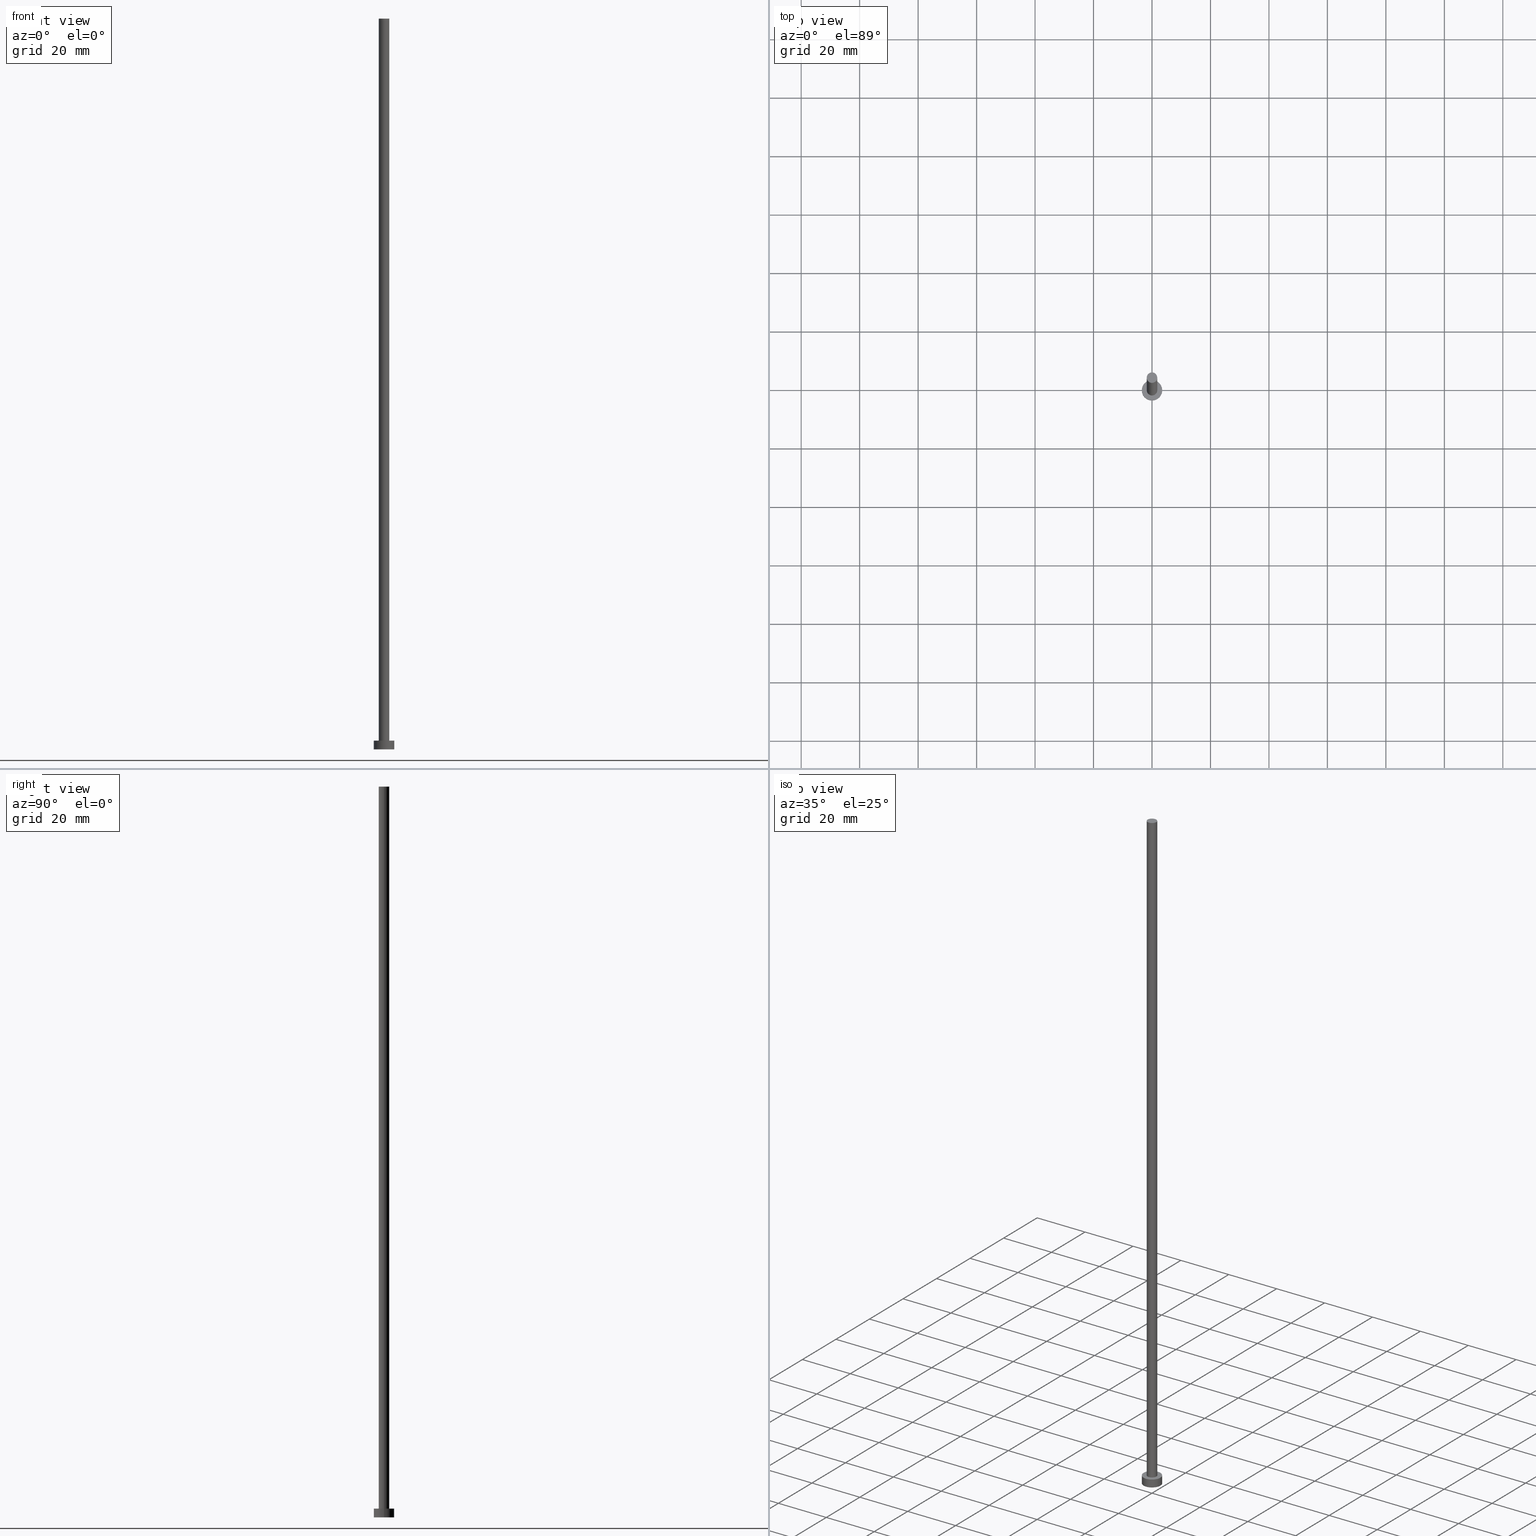
[diagram: canonical four-view strip — front | top / right | iso, engineering-drawing reading convention]
A machine part, canonical four-view strip (front | top / right | iso — engineering-drawing reading convention). The complete STEP part file that produces these views, byte-faithful:
ISO-10303-21;
HEADER;
FILE_DESCRIPTION (( 'STEP AP203' ),
    '1' );
FILE_NAME ('6d70.STEP',
    '2023-05-24T12:28:08',
    ( '' ),
    ( '' ),
    'SwSTEP 2.0',
    'SolidWorks 2019',
    '' );
FILE_SCHEMA (( 'CONFIG_CONTROL_DESIGN' ));
ENDSEC;

DATA;
#1 = ORIENTED_EDGE ( 'NONE', *, *, #40, .T. ) ;
#2 = ADVANCED_FACE ( 'NONE', ( #107 ), #166, .F. ) ;
#3 = CARTESIAN_POINT ( 'NONE',  ( -1.800000000000000044, 0.000000000000000000, 3.000000000000000000 ) ) ;
#4 = CALENDAR_DATE ( 2023, 24, 5 ) ;
#5 = ORIENTED_EDGE ( 'NONE', *, *, #192, .F. ) ;
#6 = ORIENTED_EDGE ( 'NONE', *, *, #155, .F. ) ;
#7 = VERTEX_POINT ( 'NONE', #242 ) ;
#8 = DIRECTION ( 'NONE',  ( 0.000000000000000000, 0.000000000000000000, 1.000000000000000000 ) ) ;
#9 = CARTESIAN_POINT ( 'NONE',  ( 0.000000000000000000, 0.000000000000000000, 3.000000000000000000 ) ) ;
#10 = EDGE_CURVE ( 'NONE', #236, #7, #68, .T. ) ;
#11 = LINE ( 'NONE', #94, #198 ) ;
#12 = DIRECTION ( 'NONE',  ( 1.000000000000000000, 0.000000000000000000, 0.000000000000000000 ) ) ;
#13 = DIRECTION ( 'NONE',  ( 1.000000000000000000, 0.000000000000000000, -0.000000000000000000 ) ) ;
#14 = ADVANCED_FACE ( 'NONE', ( #149 ), #221, .T. ) ;
#15 = DIRECTION ( 'NONE',  ( 1.000000000000000000, 0.000000000000000000, 0.000000000000000000 ) ) ;
#16 = CIRCLE ( 'NONE', #79, 3.500000000000000444 ) ;
#17 = AXIS2_PLACEMENT_3D ( 'NONE', #170, #248, #182 ) ;
#18 = PERSON_AND_ORGANIZATION ( #205, #50 ) ;
#19 = ORIENTED_EDGE ( 'NONE', *, *, #30, .F. ) ;
#20 = CYLINDRICAL_SURFACE ( 'NONE', #204, 1.800000000000000044 ) ;
#21 = CARTESIAN_POINT ( 'NONE',  ( 0.000000000000000000, 0.000000000000000000, 3.000000000000000000 ) ) ;
#22 = DATE_TIME_ROLE ( 'classification_date' ) ;
#23 = ORIENTED_EDGE ( 'NONE', *, *, #150, .T. ) ;
#24 = DIRECTION ( 'NONE',  ( 1.000000000000000000, 0.000000000000000000, 0.000000000000000000 ) ) ;
#25 = CC_DESIGN_PERSON_AND_ORGANIZATION_ASSIGNMENT ( #62, #144, ( #104 ) ) ;
#26 = CARTESIAN_POINT ( 'NONE',  ( -1.800000000000000044, 0.000000000000000000, 250.0000000000000000 ) ) ;
#27 =( LENGTH_UNIT ( ) NAMED_UNIT ( * ) SI_UNIT ( .MILLI., .METRE. ) );
#28 = CIRCLE ( 'NONE', #208, 1.800000000000000044 ) ;
#29 = FACE_OUTER_BOUND ( 'NONE', #59, .T. ) ;
#30 = EDGE_CURVE ( 'NONE', #215, #195, #16, .T. ) ;
#31 = PRODUCT_DEFINITION_SHAPE ( 'NONE', 'NONE',  #173 ) ;
#32 = CARTESIAN_POINT ( 'NONE',  ( 3.500000000000000444, 4.286263797015737088E-16, 0.000000000000000000 ) ) ;
#33 = APPROVAL_DATE_TIME ( #191, #115 ) ;
#34 = EDGE_LOOP ( 'NONE', ( #5, #243 ) ) ;
#35 =( GEOMETRIC_REPRESENTATION_CONTEXT ( 3 ) GLOBAL_UNCERTAINTY_ASSIGNED_CONTEXT ( ( #82 ) ) GLOBAL_UNIT_ASSIGNED_CONTEXT ( ( #27, #223, #113 ) ) REPRESENTATION_CONTEXT ( 'NONE', 'WORKASPACE' ) );
#36 = VECTOR ( 'NONE', #185, 1000.000000000000000 ) ;
#37 = APPROVAL_ROLE ( '' ) ;
#38 = CALENDAR_DATE ( 2023, 24, 5 ) ;
#39 = PERSON_AND_ORGANIZATION_ROLE ( 'design_owner' ) ;
#40 = EDGE_CURVE ( 'NONE', #222, #130, #28, .T. ) ;
#41 = CIRCLE ( 'NONE', #224, 3.500000000000000444 ) ;
#42 = APPROVAL_STATUS ( 'not_yet_approved' ) ;
#43 = DIRECTION ( 'NONE',  ( 1.000000000000000000, 0.000000000000000000, 0.000000000000000000 ) ) ;
#44 = SHAPE_DEFINITION_REPRESENTATION ( #31, #57 ) ;
#45 = DIRECTION ( 'NONE',  ( 0.000000000000000000, 0.000000000000000000, 1.000000000000000000 ) ) ;
#46 = DIRECTION ( 'NONE',  ( 0.000000000000000000, 0.000000000000000000, 1.000000000000000000 ) ) ;
#47 = EDGE_LOOP ( 'NONE', ( #201, #23, #177, #139 ) ) ;
#48 = ORIENTED_EDGE ( 'NONE', *, *, #10, .T. ) ;
#49 = AXIS2_PLACEMENT_3D ( 'NONE', #157, #137, #228 ) ;
#50 = ORGANIZATION ( 'NEUR�EN�', 'NEUR�EN�', '' ) ;
#51 = DIRECTION ( 'NONE',  ( -0.000000000000000000, -0.000000000000000000, -1.000000000000000000 ) ) ;
#52 = DIRECTION ( 'NONE',  ( 0.000000000000000000, 0.000000000000000000, 1.000000000000000000 ) ) ;
#53 = CLOSED_SHELL ( 'NONE', ( #196, #202, #244, #216, #2, #123, #14 ) ) ;
#54 = CC_DESIGN_APPROVAL ( #111, ( #173 ) ) ;
#55 = PRODUCT ( '6d70', '6d70', '', ( #233 ) ) ;
#56 = LINE ( 'NONE', #211, #245 ) ;
#57 = ADVANCED_BREP_SHAPE_REPRESENTATION ( '6d70', ( #217, #176 ), #35 ) ;
#58 = PERSON_AND_ORGANIZATION ( #205, #50 ) ;
#59 = EDGE_LOOP ( 'NONE', ( #129, #232, #67, #70 ) ) ;
#60 = APPROVAL_PERSON_ORGANIZATION ( #58, #115, #77 ) ;
#61 = DATE_AND_TIME ( #172, #74 ) ;
#62 = PERSON_AND_ORGANIZATION ( #205, #50 ) ;
#63 = CARTESIAN_POINT ( 'NONE',  ( 1.800000000000000044, 2.204364238465235576E-16, 250.0000000000000000 ) ) ;
#64 = APPROVAL_DATE_TIME ( #147, #241 ) ;
#65 = CARTESIAN_POINT ( 'NONE',  ( 0.000000000000000000, 0.000000000000000000, 0.000000000000000000 ) ) ;
#66 = CC_DESIGN_PERSON_AND_ORGANIZATION_ASSIGNMENT ( #18, #174, ( #173 ) ) ;
#67 = ORIENTED_EDGE ( 'NONE', *, *, #155, .T. ) ;
#68 = CIRCLE ( 'NONE', #193, 3.500000000000000444 ) ;
#69 = VECTOR ( 'NONE', #51, 1000.000000000000000 ) ;
#70 = ORIENTED_EDGE ( 'NONE', *, *, #192, .T. ) ;
#71 = EDGE_CURVE ( 'NONE', #130, #222, #99, .T. ) ;
#72 = DIRECTION ( 'NONE',  ( 0.000000000000000000, 0.000000000000000000, 1.000000000000000000 ) ) ;
#73 = DIRECTION ( 'NONE',  ( -1.000000000000000000, 0.000000000000000000, 0.000000000000000000 ) ) ;
#74 = LOCAL_TIME ( 14, 28, 8.000000000000000000, #237 ) ;
#75 = DIRECTION ( 'NONE',  ( 1.000000000000000000, 0.000000000000000000, 0.000000000000000000 ) ) ;
#76 = DIRECTION ( 'NONE',  ( -0.000000000000000000, -0.000000000000000000, -1.000000000000000000 ) ) ;
#77 = APPROVAL_ROLE ( '' ) ;
#78 = PERSON_AND_ORGANIZATION_ROLE ( 'design_supplier' ) ;
#79 = AXIS2_PLACEMENT_3D ( 'NONE', #203, #45, #24 ) ;
#80 = APPROVAL_ROLE ( '' ) ;
#81 = FACE_OUTER_BOUND ( 'NONE', #85, .T. ) ;
#82 = UNCERTAINTY_MEASURE_WITH_UNIT (LENGTH_MEASURE( 1.000000000000000082E-05 ), #27, 'distance_accuracy_value', 'NONE');
#83 = EDGE_LOOP ( 'NONE', ( #152, #213 ) ) ;
#84 = CC_DESIGN_PERSON_AND_ORGANIZATION_ASSIGNMENT ( #141, #39, ( #55 ) ) ;
#85 = EDGE_LOOP ( 'NONE', ( #143, #199, #101, #218 ) ) ;
#86 = PERSON_AND_ORGANIZATION ( #205, #50 ) ;
#87 = ORIENTED_EDGE ( 'NONE', *, *, #249, .F. ) ;
#88 = CARTESIAN_POINT ( 'NONE',  ( 0.000000000000000000, 0.000000000000000000, 250.0000000000000000 ) ) ;
#89 = DESIGN_CONTEXT ( 'detailed design', #225, 'design' ) ;
#90 = LINE ( 'NONE', #186, #36 ) ;
#91 = FACE_OUTER_BOUND ( 'NONE', #47, .T. ) ;
#92 = LOCAL_TIME ( 14, 28, 8.000000000000000000, #116 ) ;
#93 = DIRECTION ( 'NONE',  ( -0.000000000000000000, -0.000000000000000000, -1.000000000000000000 ) ) ;
#94 = CARTESIAN_POINT ( 'NONE',  ( -1.800000000000000044, 0.000000000000000000, 250.0000000000000000 ) ) ;
#95 = CARTESIAN_POINT ( 'NONE',  ( -3.500000000000000444, 0.000000000000000000, 3.000000000000000000 ) ) ;
#96 = CC_DESIGN_DATE_AND_TIME_ASSIGNMENT ( #61, #253, ( #173 ) ) ;
#97 = PERSON_AND_ORGANIZATION ( #205, #50 ) ;
#98 = APPLICATION_PROTOCOL_DEFINITION ( 'international standard', 'config_control_design', 1994, #110 ) ;
#99 = CIRCLE ( 'NONE', #122, 1.800000000000000044 ) ;
#100 = AXIS2_PLACEMENT_3D ( 'NONE', #207, #206, #13 ) ;
#101 = ORIENTED_EDGE ( 'NONE', *, *, #158, .T. ) ;
#102 = CALENDAR_DATE ( 2023, 24, 5 ) ;
#103 = VERTEX_POINT ( 'NONE', #3 ) ;
#104 = SECURITY_CLASSIFICATION ( '', '', #118 ) ;
#105 = DIRECTION ( 'NONE',  ( -0.000000000000000000, -0.000000000000000000, -1.000000000000000000 ) ) ;
#106 = ORIENTED_EDGE ( 'NONE', *, *, #71, .T. ) ;
#107 = FACE_OUTER_BOUND ( 'NONE', #34, .T. ) ;
#108 = LOCAL_TIME ( 14, 28, 8.000000000000000000, #124 ) ;
#109 = DIRECTION ( 'NONE',  ( 0.000000000000000000, 0.000000000000000000, 1.000000000000000000 ) ) ;
#110 = APPLICATION_CONTEXT ( 'configuration controlled 3d designs of mechanical parts and assemblies' ) ;
#111 = APPROVAL ( #194, 'NEUR�EN�' ) ;
#112 = CIRCLE ( 'NONE', #188, 1.800000000000000044 ) ;
#113 =( NAMED_UNIT ( * ) SI_UNIT ( $, .STERADIAN. ) SOLID_ANGLE_UNIT ( ) );
#114 = CARTESIAN_POINT ( 'NONE',  ( 3.500000000000000444, 4.286263797015737088E-16, 3.000000000000000000 ) ) ;
#115 = APPROVAL ( #120, 'NEUR�EN�' ) ;
#116 = COORDINATED_UNIVERSAL_TIME_OFFSET ( 1, 0, .AHEAD. ) ;
#117 = CIRCLE ( 'NONE', #135, 1.800000000000000044 ) ;
#118 = SECURITY_CLASSIFICATION_LEVEL ( 'unclassified' ) ;
#119 = COORDINATED_UNIVERSAL_TIME_OFFSET ( 1, 0, .AHEAD. ) ;
#120 = APPROVAL_STATUS ( 'not_yet_approved' ) ;
#121 = APPLICATION_PROTOCOL_DEFINITION ( 'international standard', 'config_control_design', 1994, #225 ) ;
#122 = AXIS2_PLACEMENT_3D ( 'NONE', #178, #72, #151 ) ;
#123 = ADVANCED_FACE ( 'NONE', ( #81 ), #20, .T. ) ;
#124 = COORDINATED_UNIVERSAL_TIME_OFFSET ( 1, 0, .AHEAD. ) ;
#125 = CARTESIAN_POINT ( 'NONE',  ( 1.800000000000000044, 2.204364238465235576E-16, 250.0000000000000000 ) ) ;
#126 = EDGE_LOOP ( 'NONE', ( #1, #106 ) ) ;
#127 = EDGE_CURVE ( 'NONE', #195, #215, #41, .T. ) ;
#128 = CARTESIAN_POINT ( 'NONE',  ( 0.000000000000000000, 0.000000000000000000, 250.0000000000000000 ) ) ;
#129 = ORIENTED_EDGE ( 'NONE', *, *, #231, .F. ) ;
#130 = VERTEX_POINT ( 'NONE', #63 ) ;
#131 = CYLINDRICAL_SURFACE ( 'NONE', #17, 3.500000000000000444 ) ;
#132 = PRODUCT_RELATED_PRODUCT_CATEGORY ( 'detail', '', ( #55 ) ) ;
#133 = CARTESIAN_POINT ( 'NONE',  ( 0.000000000000000000, 0.000000000000000000, 0.000000000000000000 ) ) ;
#134 = PLANE ( 'NONE',  #100 ) ;
#135 = AXIS2_PLACEMENT_3D ( 'NONE', #9, #167, #250 ) ;
#136 = APPROVAL_PERSON_ORGANIZATION ( #86, #241, #80 ) ;
#137 = DIRECTION ( 'NONE',  ( -0.000000000000000000, -0.000000000000000000, -1.000000000000000000 ) ) ;
#138 = APPROVAL_DATE_TIME ( #254, #111 ) ;
#139 = ORIENTED_EDGE ( 'NONE', *, *, #158, .F. ) ;
#140 = CC_DESIGN_APPROVAL ( #115, ( #197 ) ) ;
#141 = PERSON_AND_ORGANIZATION ( #205, #50 ) ;
#142 = EDGE_LOOP ( 'NONE', ( #19, #145, #48, #6 ) ) ;
#143 = ORIENTED_EDGE ( 'NONE', *, *, #150, .F. ) ;
#144 = PERSON_AND_ORGANIZATION_ROLE ( 'classification_officer' ) ;
#145 = ORIENTED_EDGE ( 'NONE', *, *, #231, .T. ) ;
#146 = CC_DESIGN_SECURITY_CLASSIFICATION ( #104, ( #197 ) ) ;
#147 = DATE_AND_TIME ( #4, #108 ) ;
#148 = LINE ( 'NONE', #125, #69 ) ;
#149 = FACE_OUTER_BOUND ( 'NONE', #126, .T. ) ;
#150 = EDGE_CURVE ( 'NONE', #130, #153, #148, .T. ) ;
#151 = DIRECTION ( 'NONE',  ( 1.000000000000000000, 0.000000000000000000, 0.000000000000000000 ) ) ;
#152 = ORIENTED_EDGE ( 'NONE', *, *, #127, .T. ) ;
#153 = VERTEX_POINT ( 'NONE', #226 ) ;
#154 = FACE_BOUND ( 'NONE', #179, .T. ) ;
#155 = EDGE_CURVE ( 'NONE', #195, #7, #90, .T. ) ;
#156 = FACE_OUTER_BOUND ( 'NONE', #142, .T. ) ;
#157 = CARTESIAN_POINT ( 'NONE',  ( 0.000000000000000000, 0.000000000000000000, 3.000000000000000000 ) ) ;
#158 = EDGE_CURVE ( 'NONE', #222, #103, #11, .T. ) ;
#159 = AXIS2_PLACEMENT_3D ( 'NONE', #128, #8, #161 ) ;
#160 = PERSON_AND_ORGANIZATION_ROLE ( 'creator' ) ;
#161 = DIRECTION ( 'NONE',  ( 1.000000000000000000, 0.000000000000000000, -0.000000000000000000 ) ) ;
#162 = LOCAL_TIME ( 14, 28, 8.000000000000000000, #214 ) ;
#163 = CARTESIAN_POINT ( 'NONE',  ( 0.000000000000000000, 0.000000000000000000, 0.000000000000000000 ) ) ;
#164 = DIRECTION ( 'NONE',  ( 1.000000000000000000, 0.000000000000000000, 0.000000000000000000 ) ) ;
#165 = ORIENTED_EDGE ( 'NONE', *, *, #227, .F. ) ;
#166 = PLANE ( 'NONE',  #169 ) ;
#167 = DIRECTION ( 'NONE',  ( 0.000000000000000000, 0.000000000000000000, 1.000000000000000000 ) ) ;
#168 = CARTESIAN_POINT ( 'NONE',  ( 0.000000000000000000, 0.000000000000000000, 250.0000000000000000 ) ) ;
#169 = AXIS2_PLACEMENT_3D ( 'NONE', #163, #246, #180 ) ;
#170 = CARTESIAN_POINT ( 'NONE',  ( 0.000000000000000000, 0.000000000000000000, 3.000000000000000000 ) ) ;
#171 = FACE_OUTER_BOUND ( 'NONE', #83, .T. ) ;
#172 = CALENDAR_DATE ( 2023, 24, 5 ) ;
#173 = PRODUCT_DEFINITION ( 'NEZN�M�', '', #197, #89 ) ;
#174 = PERSON_AND_ORGANIZATION_ROLE ( 'creator' ) ;
#175 = PERSON_AND_ORGANIZATION ( #205, #50 ) ;
#176 = AXIS2_PLACEMENT_3D ( 'NONE', #235, #212, #15 ) ;
#177 = ORIENTED_EDGE ( 'NONE', *, *, #249, .T. ) ;
#178 = CARTESIAN_POINT ( 'NONE',  ( 0.000000000000000000, 0.000000000000000000, 250.0000000000000000 ) ) ;
#179 = EDGE_LOOP ( 'NONE', ( #165, #87 ) ) ;
#180 = DIRECTION ( 'NONE',  ( 1.000000000000000000, 0.000000000000000000, -0.000000000000000000 ) ) ;
#181 = CC_DESIGN_PERSON_AND_ORGANIZATION_ASSIGNMENT ( #175, #160, ( #197 ) ) ;
#182 = DIRECTION ( 'NONE',  ( -1.000000000000000000, 0.000000000000000000, 0.000000000000000000 ) ) ;
#183 = DIRECTION ( 'NONE',  ( -0.000000000000000000, -0.000000000000000000, -1.000000000000000000 ) ) ;
#184 = AXIS2_PLACEMENT_3D ( 'NONE', #133, #251, #75 ) ;
#185 = DIRECTION ( 'NONE',  ( -0.000000000000000000, -0.000000000000000000, -1.000000000000000000 ) ) ;
#186 = CARTESIAN_POINT ( 'NONE',  ( -3.500000000000000444, 0.000000000000000000, 3.000000000000000000 ) ) ;
#187 = DATE_AND_TIME ( #190, #92 ) ;
#188 = AXIS2_PLACEMENT_3D ( 'NONE', #230, #52, #12 ) ;
#189 = CC_DESIGN_DATE_AND_TIME_ASSIGNMENT ( #187, #22, ( #104 ) ) ;
#190 = CALENDAR_DATE ( 2023, 24, 5 ) ;
#191 = DATE_AND_TIME ( #102, #162 ) ;
#192 = EDGE_CURVE ( 'NONE', #7, #236, #234, .T. ) ;
#193 = AXIS2_PLACEMENT_3D ( 'NONE', #65, #46, #164 ) ;
#194 = APPROVAL_STATUS ( 'not_yet_approved' ) ;
#195 = VERTEX_POINT ( 'NONE', #95 ) ;
#196 = ADVANCED_FACE ( 'NONE', ( #91 ), #252, .T. ) ;
#197 = PRODUCT_DEFINITION_FORMATION_WITH_SPECIFIED_SOURCE ( 'LIBOVOLN�', '', #55, .NOT_KNOWN. ) ;
#198 = VECTOR ( 'NONE', #183, 1000.000000000000000 ) ;
#199 = ORIENTED_EDGE ( 'NONE', *, *, #40, .F. ) ;
#200 = CARTESIAN_POINT ( 'NONE',  ( 0.000000000000000000, 0.000000000000000000, 250.0000000000000000 ) ) ;
#201 = ORIENTED_EDGE ( 'NONE', *, *, #71, .F. ) ;
#202 = ADVANCED_FACE ( 'NONE', ( #156 ), #210, .T. ) ;
#203 = CARTESIAN_POINT ( 'NONE',  ( 0.000000000000000000, 0.000000000000000000, 3.000000000000000000 ) ) ;
#204 = AXIS2_PLACEMENT_3D ( 'NONE', #200, #105, #220 ) ;
#205 = PERSON ( 'NEUR�EN�', 'NEUR�EN�', 'NEUR�EN�', ('NEUR�EN�'), ('NEUR�EN�'), ('NEUR�EN�') ) ;
#206 = DIRECTION ( 'NONE',  ( 0.000000000000000000, 0.000000000000000000, 1.000000000000000000 ) ) ;
#207 = CARTESIAN_POINT ( 'NONE',  ( 0.000000000000000000, 0.000000000000000000, 3.000000000000000000 ) ) ;
#208 = AXIS2_PLACEMENT_3D ( 'NONE', #88, #109, #247 ) ;
#209 = AXIS2_PLACEMENT_3D ( 'NONE', #168, #76, #73 ) ;
#210 = CYLINDRICAL_SURFACE ( 'NONE', #49, 3.500000000000000444 ) ;
#211 = CARTESIAN_POINT ( 'NONE',  ( 3.500000000000000444, 4.286263797015737088E-16, 3.000000000000000000 ) ) ;
#212 = DIRECTION ( 'NONE',  ( 0.000000000000000000, 0.000000000000000000, 1.000000000000000000 ) ) ;
#213 = ORIENTED_EDGE ( 'NONE', *, *, #30, .T. ) ;
#214 = COORDINATED_UNIVERSAL_TIME_OFFSET ( 1, 0, .AHEAD. ) ;
#215 = VERTEX_POINT ( 'NONE', #114 ) ;
#216 = ADVANCED_FACE ( 'NONE', ( #154, #171 ), #134, .T. ) ;
#217 = MANIFOLD_SOLID_BREP ( 'P�idat vysunut�m3', #53 ) ;
#218 = ORIENTED_EDGE ( 'NONE', *, *, #227, .T. ) ;
#219 = CC_DESIGN_APPROVAL ( #241, ( #104 ) ) ;
#220 = DIRECTION ( 'NONE',  ( -1.000000000000000000, 0.000000000000000000, 0.000000000000000000 ) ) ;
#221 = PLANE ( 'NONE',  #159 ) ;
#222 = VERTEX_POINT ( 'NONE', #26 ) ;
#223 =( NAMED_UNIT ( * ) PLANE_ANGLE_UNIT ( ) SI_UNIT ( $, .RADIAN. ) );
#224 = AXIS2_PLACEMENT_3D ( 'NONE', #21, #240, #43 ) ;
#225 = APPLICATION_CONTEXT ( 'configuration controlled 3d designs of mechanical parts and assemblies' ) ;
#226 = CARTESIAN_POINT ( 'NONE',  ( 1.800000000000000044, 2.204364238465235576E-16, 3.000000000000000000 ) ) ;
#227 = EDGE_CURVE ( 'NONE', #103, #153, #112, .T. ) ;
#228 = DIRECTION ( 'NONE',  ( -1.000000000000000000, 0.000000000000000000, 0.000000000000000000 ) ) ;
#229 = APPROVAL_PERSON_ORGANIZATION ( #97, #111, #37 ) ;
#230 = CARTESIAN_POINT ( 'NONE',  ( 0.000000000000000000, 0.000000000000000000, 3.000000000000000000 ) ) ;
#231 = EDGE_CURVE ( 'NONE', #215, #236, #56, .T. ) ;
#232 = ORIENTED_EDGE ( 'NONE', *, *, #127, .F. ) ;
#233 = MECHANICAL_CONTEXT ( 'NONE', #110, 'mechanical' ) ;
#234 = CIRCLE ( 'NONE', #184, 3.500000000000000444 ) ;
#235 = CARTESIAN_POINT ( 'NONE',  ( 0.000000000000000000, 0.000000000000000000, 0.000000000000000000 ) ) ;
#236 = VERTEX_POINT ( 'NONE', #32 ) ;
#237 = COORDINATED_UNIVERSAL_TIME_OFFSET ( 1, 0, .AHEAD. ) ;
#238 = PERSON_AND_ORGANIZATION ( #205, #50 ) ;
#239 = LOCAL_TIME ( 14, 28, 8.000000000000000000, #119 ) ;
#240 = DIRECTION ( 'NONE',  ( 0.000000000000000000, 0.000000000000000000, 1.000000000000000000 ) ) ;
#241 = APPROVAL ( #42, 'NEUR�EN�' ) ;
#242 = CARTESIAN_POINT ( 'NONE',  ( -3.500000000000000444, 0.000000000000000000, 0.000000000000000000 ) ) ;
#243 = ORIENTED_EDGE ( 'NONE', *, *, #10, .F. ) ;
#244 = ADVANCED_FACE ( 'NONE', ( #29 ), #131, .T. ) ;
#245 = VECTOR ( 'NONE', #93, 1000.000000000000000 ) ;
#246 = DIRECTION ( 'NONE',  ( 0.000000000000000000, 0.000000000000000000, 1.000000000000000000 ) ) ;
#247 = DIRECTION ( 'NONE',  ( 1.000000000000000000, 0.000000000000000000, 0.000000000000000000 ) ) ;
#248 = DIRECTION ( 'NONE',  ( -0.000000000000000000, -0.000000000000000000, -1.000000000000000000 ) ) ;
#249 = EDGE_CURVE ( 'NONE', #153, #103, #117, .T. ) ;
#250 = DIRECTION ( 'NONE',  ( 1.000000000000000000, 0.000000000000000000, 0.000000000000000000 ) ) ;
#251 = DIRECTION ( 'NONE',  ( 0.000000000000000000, 0.000000000000000000, 1.000000000000000000 ) ) ;
#252 = CYLINDRICAL_SURFACE ( 'NONE', #209, 1.800000000000000044 ) ;
#253 = DATE_TIME_ROLE ( 'creation_date' ) ;
#254 = DATE_AND_TIME ( #38, #239 ) ;
#255 = CC_DESIGN_PERSON_AND_ORGANIZATION_ASSIGNMENT ( #238, #78, ( #197 ) ) ;
ENDSEC;
END-ISO-10303-21;
